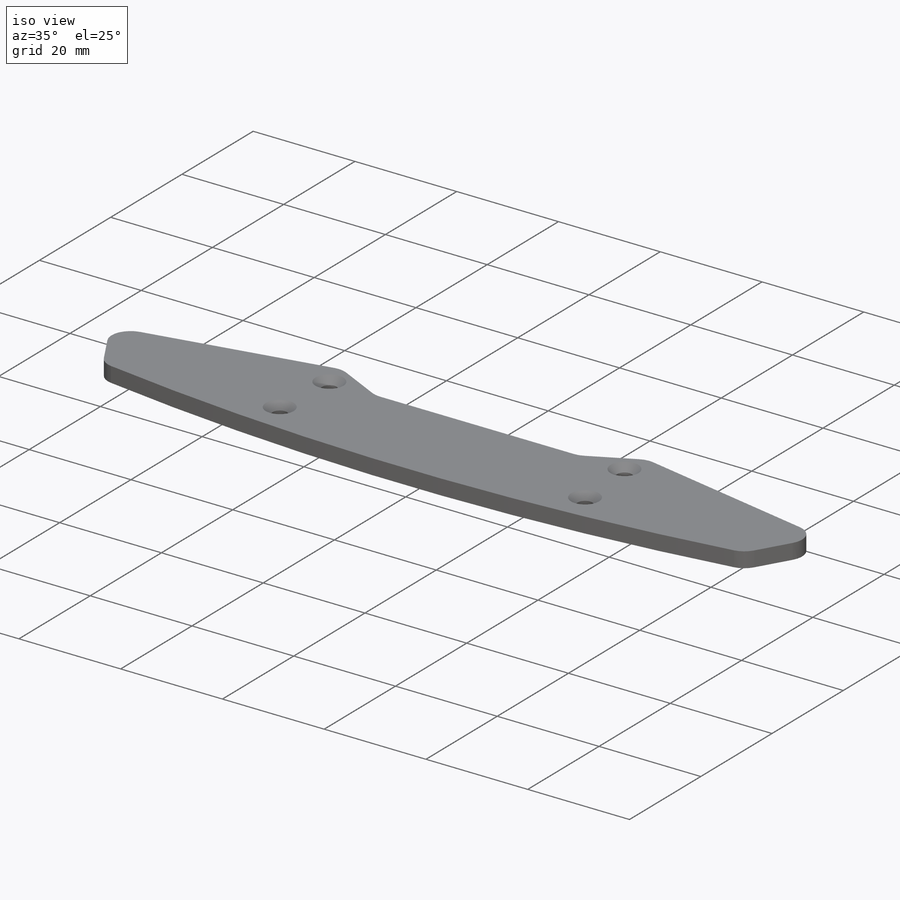
[diagram: iso view]
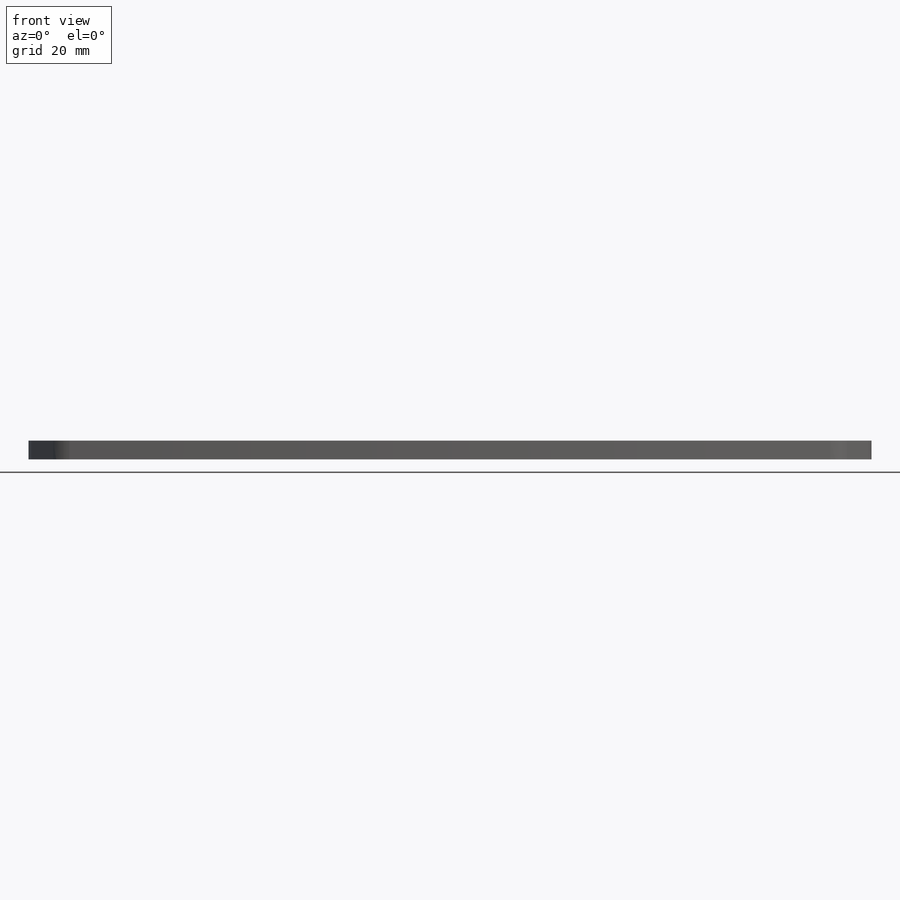
[diagram: front view]
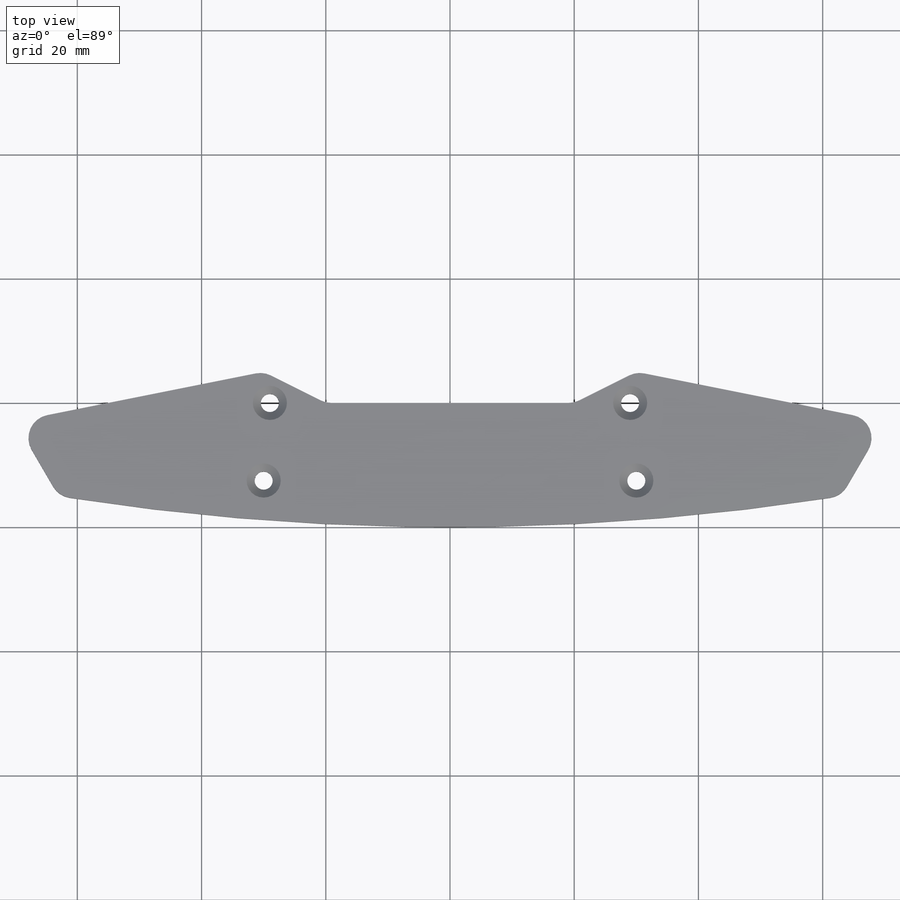
[diagram: top view]
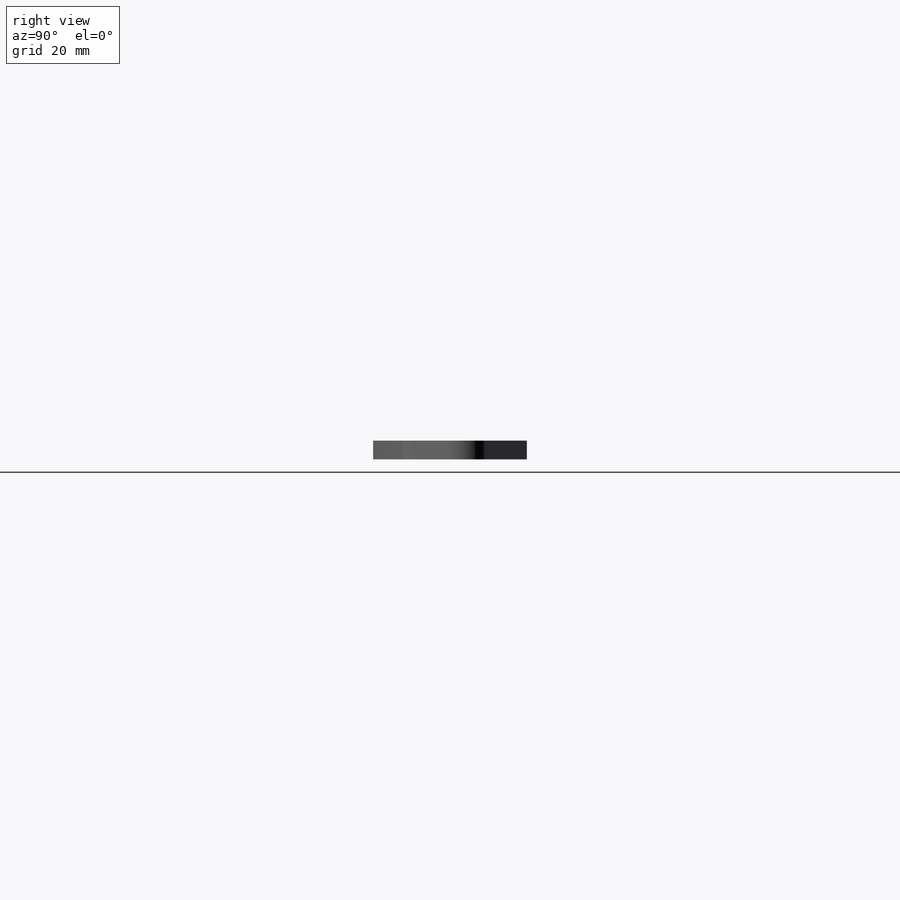
[diagram: right view]
SOLIDWORKS PART (.sldprt)
format: sldprt  version: not decoded by parser v0  size: 226,304 bytes
history: native  units: mm
features: sketch x3, material x1, extrude x1, hole x1, mirror x1, fillet x1 (+11 scaffold rows collapsed)
feature tree (19):
  scaffold x11  (default folders/planes/origin — collapsed)
  material  "Delrin 2700 NC010, Low Viscosity Acetal Copolymer (SS)"
  sketch  "Sketch1"  dims[D1=70.0mm D2=20.0mm D3=25.0mm D4=3.0mm D5=5.0mm D6=40.0mm D7=12.0mm D8=7.0mm]
  extrude  "Boss-Extrude1"  Depth=3mm
  hole  "CSK for M2.5 Flat Head Machine Screw1"  Diameter=2.9mm Depth=3mm
  sketch  "Sketch4"  dims[D1=29.0mm D2=30.0mm D3=12.5mm]
  sketch  "Sketch3"  dims[hole-wizard template sketch: 55 standard entries collapsed; hole parameters kept: c17.Thru Hole Depth=3.0mm c17.Near C'Sink Dia.=5.5mm c17.D4=~3.666174mm c17.Near C'Sink Angle=90.0deg]
  mirror  "Mirror1"
  fillet  "Fillet1"  Radius=3.75mm
decode coverage: 6 of 7 modeling features carry decoded parameters
note: ~ marks probable driven/reference dimensions
note: suppression state not decoded; provenance and decode notes live in map.json
